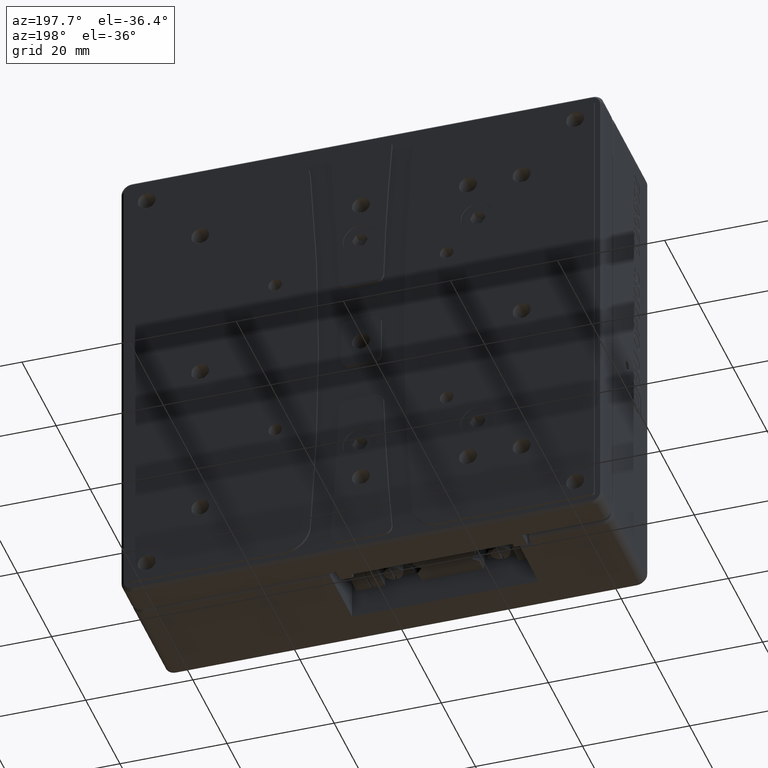
[diagram: clean part render]
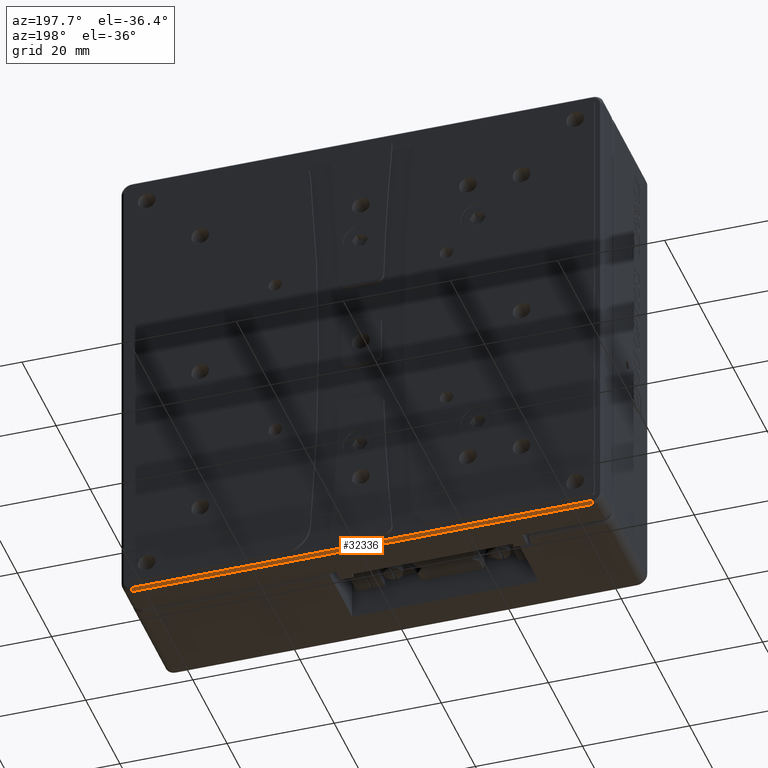
[diagram: same view with one face highlighted and labeled with its STEP entity id]
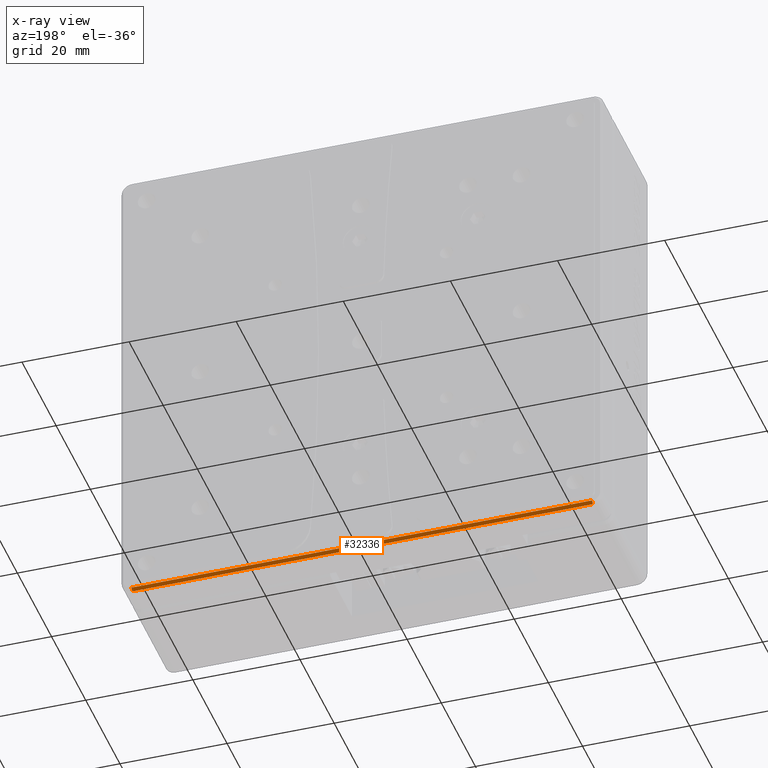
[diagram: x-ray of the same camera — body ghosted, the highlighted face saturated]
A machine part, auxiliary view. The second image highlights one B-rep face of the part: STEP entity #32336.
The next image is the same camera in x-ray: the body ghosted, the highlighted face saturated — about 0% of this face is hidden behind the body in this view.
In plain terms, the highlighted planar face has unit normal (0, 0.7071, -0.7071).
Its self-contained STEP definition (entity closure, byte-faithful):
#749 = EDGE_CURVE ( 'NONE', #39377, #10229, #27850, .T. ) ;
#1523 = EDGE_CURVE ( 'NONE', #17588, #36177, #32688, .T. ) ;
#2306 = EDGE_CURVE ( 'NONE', #36177, #10229, #11324, .T. ) ;
#2509 = LINE ( 'NONE', #5087, #9765 ) ;
#3621 = ORIENTED_EDGE ( 'NONE', *, *, #2306, .T. ) ;
#4376 = EDGE_LOOP ( 'NONE', ( #23038, #38039, #28783, #3621 ) ) ;
#5087 = CARTESIAN_POINT ( 'NONE',  ( 0.0000000000000000000, 6.000000007277000300, -45.00000000000003600 ) ) ;
#7011 = CARTESIAN_POINT ( 'NONE',  ( 42.99999999574001200, 6.500000003662307800, -44.49999999634750500 ) ) ;
#8220 = DIRECTION ( 'NONE',  ( -1.000000000000000000, -0.0000000000000000000, 0.0000000000000000000 ) ) ;
#9765 = VECTOR ( 'NONE', #8220, 1000.000000000000000 ) ;
#10229 = VERTEX_POINT ( 'NONE', #36496 ) ;
#11324 = LINE ( 'NONE', #14113, #35082 ) ;
#14113 = CARTESIAN_POINT ( 'NONE',  ( 0.0000000000000000000, 6.500000000000000900, -44.50000000000003600 ) ) ;
#14166 = CARTESIAN_POINT ( 'NONE',  ( 43.00000000000000000, 6.000000007249876300, -44.99999999637001500 ) ) ;
#14819 = CARTESIAN_POINT ( 'NONE',  ( -43.00000000000001400, 6.250000000000000000, -44.75000000000003600 ) ) ;
#15069 = CARTESIAN_POINT ( 'NONE',  ( -43.00000000000000700, 6.000000004548124500, -44.99999999909041300 ) ) ;
#15668 = DIRECTION ( 'NONE',  ( 0.0000000000000000000, 0.7071067811865475700, -0.7071067811865475700 ) ) ;
#16197 = VECTOR ( 'NONE', #36498, 1000.000000000000100 ) ;
#17588 = VERTEX_POINT ( 'NONE', #15069 ) ;
#23038 = ORIENTED_EDGE ( 'NONE', *, *, #749, .F. ) ;
#24912 = PLANE ( 'NONE',  #35353 ) ;
#27850 = B_SPLINE_CURVE_WITH_KNOTS ( 'NONE', 1,
 ( #31810, #7011 ),
 .UNSPECIFIED., .F., .F.,
 ( 2, 2 ),
 ( 0.0000000000000000000, 1.000000000000000000 ),
 .UNSPECIFIED. ) ;
#28783 = ORIENTED_EDGE ( 'NONE', *, *, #1523, .T. ) ;
#28916 = CARTESIAN_POINT ( 'NONE',  ( -43.00000000000000700, 6.499999999995907300, -44.50000000000412800 ) ) ;
#31810 = CARTESIAN_POINT ( 'NONE',  ( 43.00000000000000000, 6.000000007249876300, -44.99999999637001500 ) ) ;
#32336 = ADVANCED_FACE ( 'NONE', ( #33990 ), #24912, .T. ) ;
#32688 = LINE ( 'NONE', #14819, #16197 ) ;
#32708 = EDGE_CURVE ( 'NONE', #39377, #17588, #2509, .T. ) ;
#32825 = DIRECTION ( 'NONE',  ( 1.000000000000000000, -0.0000000000000000000, 0.0000000000000000000 ) ) ;
#33990 = FACE_OUTER_BOUND ( 'NONE', #4376, .T. ) ;
#34254 = CARTESIAN_POINT ( 'NONE',  ( 0.0000000000000000000, 6.250000000000000000, -44.75000000000003600 ) ) ;
#35082 = VECTOR ( 'NONE', #32825, 1000.000000000000000 ) ;
#35353 = AXIS2_PLACEMENT_3D ( 'NONE', #34254, #15668, #37333 ) ;
#36177 = VERTEX_POINT ( 'NONE', #28916 ) ;
#36496 = CARTESIAN_POINT ( 'NONE',  ( 42.99999999574001200, 6.500000003662307800, -44.49999999634750500 ) ) ;
#36498 = DIRECTION ( 'NONE',  ( 0.0000000000000000000, 0.7071067811865474600, 0.7071067811865474600 ) ) ;
#37333 = DIRECTION ( 'NONE',  ( 0.0000000000000000000, 0.7071067811865474600, 0.7071067811865474600 ) ) ;
#38039 = ORIENTED_EDGE ( 'NONE', *, *, #32708, .T. ) ;
#39377 = VERTEX_POINT ( 'NONE', #14166 ) ;